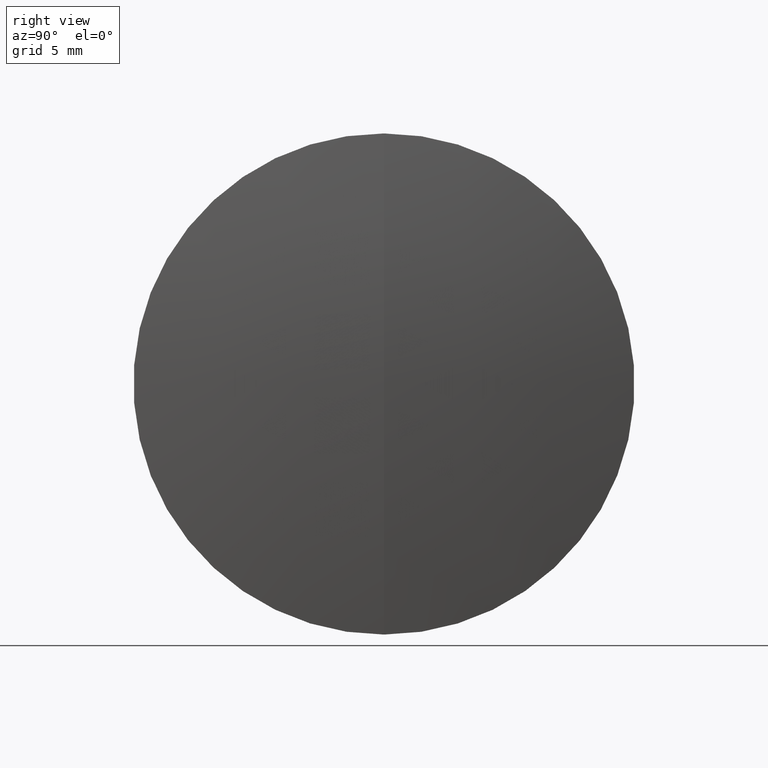
[diagram: clean part render]
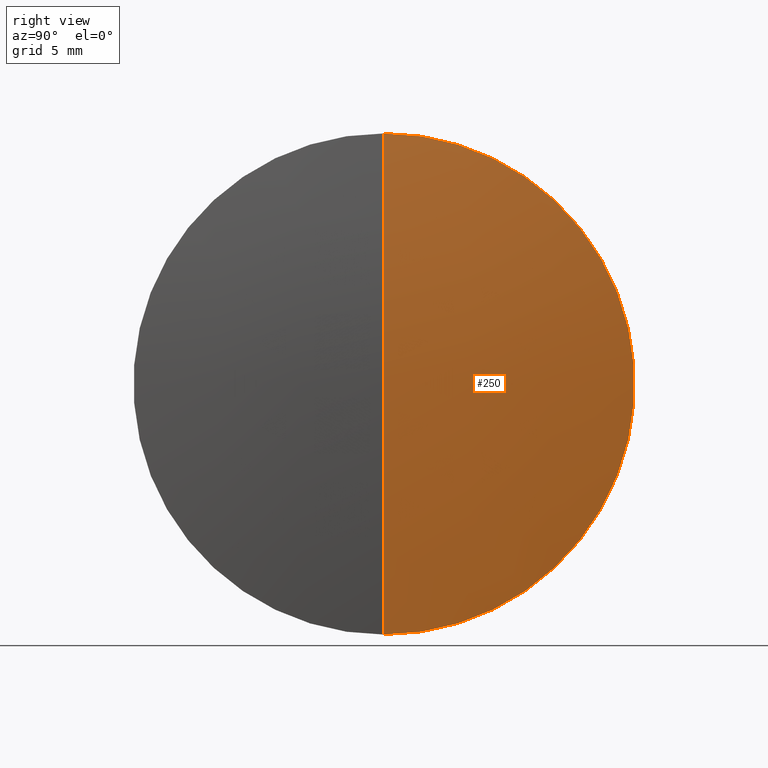
[diagram: same view with one face highlighted and labeled with its STEP entity id]
A machine part, right view. The second image highlights one B-rep face of the part: STEP entity #250.
In plain terms, the highlighted spherical surface has radius 84.306 mm.
Its self-contained STEP definition (entity closure, byte-faithful):
#2 = CARTESIAN_POINT ( 'NONE',  ( -37.44033102642524800, 0.0000000000000000000, 0.0000000000000000000 ) ) ;
#10 = DIRECTION ( 'NONE',  ( -0.0000000000000000000, 1.000000000000000000, 1.224646799147353200E-016 ) ) ;
#31 = VERTEX_POINT ( 'NONE', #159 ) ;
#53 = DIRECTION ( 'NONE',  ( 0.0000000000000000000, -1.000000000000000000, 0.0000000000000000000 ) ) ;
#85 = DIRECTION ( 'NONE',  ( 0.0000000000000000000, 0.0000000000000000000, -1.000000000000000000 ) ) ;
#86 = FACE_OUTER_BOUND ( 'NONE', #275, .T. ) ;
#96 = ORIENTED_EDGE ( 'NONE', *, *, #132, .T. ) ;
#112 = VERTEX_POINT ( 'NONE', #209 ) ;
#132 = EDGE_CURVE ( 'NONE', #112, #178, #153, .T. ) ;
#143 = DIRECTION ( 'NONE',  ( 0.0000000000000000000, 0.0000000000000000000, 1.000000000000000000 ) ) ;
#153 = CIRCLE ( 'NONE', #222, 84.30599999999999700 ) ;
#156 = ORIENTED_EDGE ( 'NONE', *, *, #210, .F. ) ;
#158 = AXIS2_PLACEMENT_3D ( 'NONE', #2, #188, #143 ) ;
#159 = CARTESIAN_POINT ( 'NONE',  ( 45.93383545216690300, 0.0000000000000000000, 12.49999999999999800 ) ) ;
#164 = CARTESIAN_POINT ( 'NONE',  ( 45.93383545216690300, 1.530808498934191700E-015, -12.49999999999999800 ) ) ;
#175 = DIRECTION ( 'NONE',  ( -1.000000000000000000, -0.0000000000000000000, -0.0000000000000000000 ) ) ;
#178 = VERTEX_POINT ( 'NONE', #164 ) ;
#188 = DIRECTION ( 'NONE',  ( 0.0000000000000000000, 1.000000000000000000, 0.0000000000000000000 ) ) ;
#193 = DIRECTION ( 'NONE',  ( 0.0000000000000000000, -1.224646799147353000E-016, 1.000000000000000000 ) ) ;
#203 = SPHERICAL_SURFACE ( 'NONE', #158, 84.30599999999999700 ) ;
#209 = CARTESIAN_POINT ( 'NONE',  ( 46.86566897357474200, 0.0000000000000000000, 5.162253652445837200E-015 ) ) ;
#210 = EDGE_CURVE ( 'NONE', #31, #178, #262, .T. ) ;
#215 = CARTESIAN_POINT ( 'NONE',  ( -37.44033102642524800, 0.0000000000000000000, 0.0000000000000000000 ) ) ;
#222 = AXIS2_PLACEMENT_3D ( 'NONE', #215, #10, #193 ) ;
#226 = EDGE_CURVE ( 'NONE', #112, #31, #276, .T. ) ;
#243 = CARTESIAN_POINT ( 'NONE',  ( -37.44033102642524800, 0.0000000000000000000, 0.0000000000000000000 ) ) ;
#250 = ADVANCED_FACE ( 'NONE', ( #86 ), #203, .T. ) ;
#262 = CIRCLE ( 'NONE', #312, 12.49999999999999800 ) ;
#275 = EDGE_LOOP ( 'NONE', ( #305, #96, #156 ) ) ;
#276 = CIRCLE ( 'NONE', #293, 84.30599999999999700 ) ;
#293 = AXIS2_PLACEMENT_3D ( 'NONE', #243, #53, #85 ) ;
#299 = CARTESIAN_POINT ( 'NONE',  ( 45.93383545216690300, 0.0000000000000000000, 0.0000000000000000000 ) ) ;
#305 = ORIENTED_EDGE ( 'NONE', *, *, #226, .F. ) ;
#312 = AXIS2_PLACEMENT_3D ( 'NONE', #299, #175, #332 ) ;
#332 = DIRECTION ( 'NONE',  ( 0.0000000000000000000, 0.0000000000000000000, 1.000000000000000000 ) ) ;